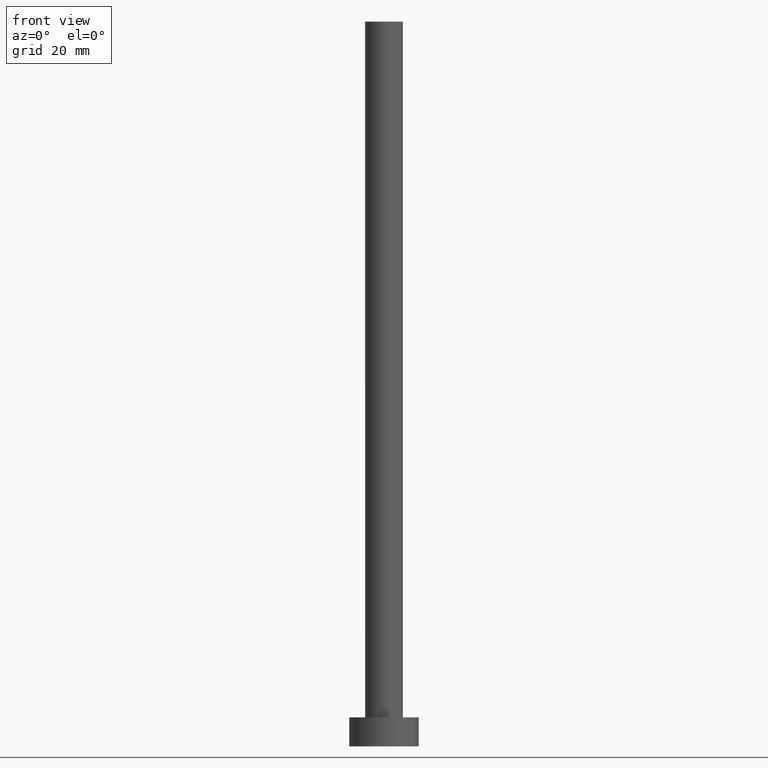
[diagram: clean part render]
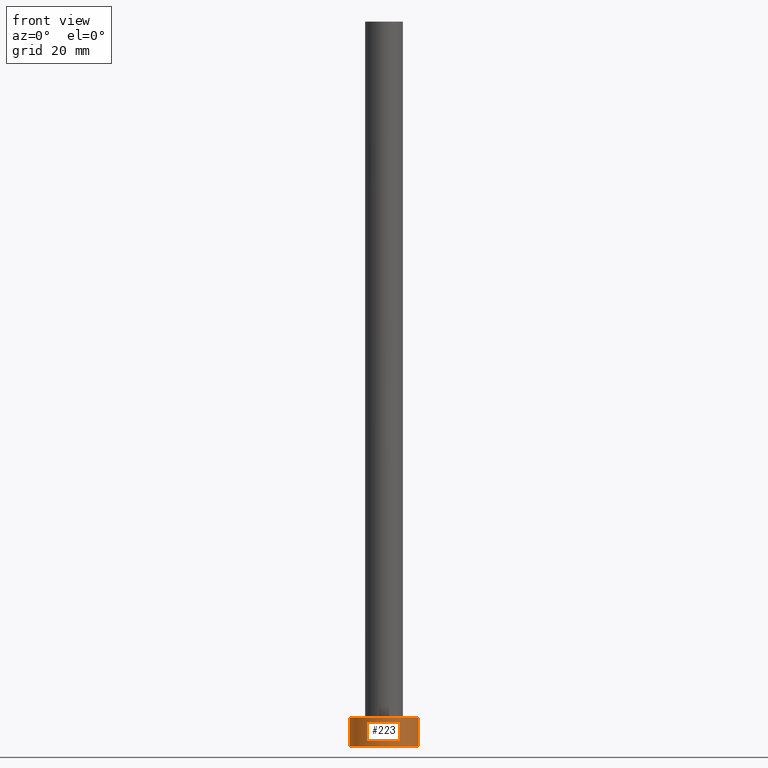
[diagram: same view with one face highlighted and labeled with its STEP entity id]
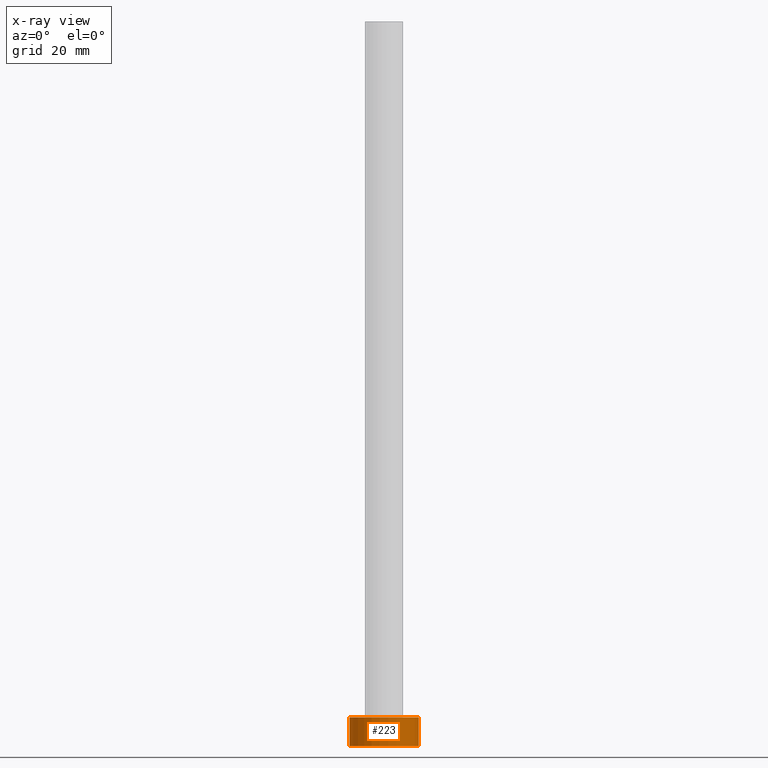
[diagram: x-ray of the same camera — body ghosted, the highlighted face saturated]
A machine part, front view. The second image highlights one B-rep face of the part: STEP entity #223.
The next image is the same camera in x-ray: the body ghosted, the highlighted face saturated — about 0% of this face is hidden behind the body in this view.
In plain terms, the highlighted cylindrical surface (edge-blend (fillet) strip) has radius 6 mm, axis along (-0, -0, -1).
Its self-contained STEP definition (entity closure, byte-faithful):
#12 = EDGE_CURVE ( 'NONE', #165, #32, #95, .T. ) ;
#22 = CARTESIAN_POINT ( 'NONE',  ( 6.000000000000000888, 7.347880794884120722E-16, 5.000000000000000000 ) ) ;
#23 = CARTESIAN_POINT ( 'NONE',  ( -6.000000000000000888, 0.000000000000000000, 0.000000000000000000 ) ) ;
#24 = LINE ( 'NONE', #22, #207 ) ;
#29 = CARTESIAN_POINT ( 'NONE',  ( -6.000000000000000888, 0.000000000000000000, 5.000000000000000000 ) ) ;
#32 = VERTEX_POINT ( 'NONE', #204 ) ;
#35 = EDGE_CURVE ( 'NONE', #32, #130, #24, .T. ) ;
#41 = EDGE_LOOP ( 'NONE', ( #108, #145, #74, #132 ) ) ;
#50 = LINE ( 'NONE', #29, #52 ) ;
#52 = VECTOR ( 'NONE', #209, 1000.000000000000000 ) ;
#61 = CIRCLE ( 'NONE', #120, 6.000000000000000888 ) ;
#64 = FACE_OUTER_BOUND ( 'NONE', #41, .T. ) ;
#66 = CARTESIAN_POINT ( 'NONE',  ( 0.000000000000000000, 0.000000000000000000, 5.000000000000000000 ) ) ;
#68 = DIRECTION ( 'NONE',  ( 0.000000000000000000, 0.000000000000000000, 1.000000000000000000 ) ) ;
#74 = ORIENTED_EDGE ( 'NONE', *, *, #166, .T. ) ;
#88 = CARTESIAN_POINT ( 'NONE',  ( -6.000000000000000888, 0.000000000000000000, 5.000000000000000000 ) ) ;
#95 = CIRCLE ( 'NONE', #150, 6.000000000000000888 ) ;
#108 = ORIENTED_EDGE ( 'NONE', *, *, #35, .F. ) ;
#112 = VERTEX_POINT ( 'NONE', #23 ) ;
#114 = CYLINDRICAL_SURFACE ( 'NONE', #129, 6.000000000000000888 ) ;
#120 = AXIS2_PLACEMENT_3D ( 'NONE', #232, #68, #220 ) ;
#129 = AXIS2_PLACEMENT_3D ( 'NONE', #66, #213, #248 ) ;
#130 = VERTEX_POINT ( 'NONE', #200 ) ;
#132 = ORIENTED_EDGE ( 'NONE', *, *, #136, .T. ) ;
#136 = EDGE_CURVE ( 'NONE', #112, #130, #61, .T. ) ;
#140 = DIRECTION ( 'NONE',  ( -0.000000000000000000, -0.000000000000000000, -1.000000000000000000 ) ) ;
#144 = CARTESIAN_POINT ( 'NONE',  ( 0.000000000000000000, 0.000000000000000000, 5.000000000000000000 ) ) ;
#145 = ORIENTED_EDGE ( 'NONE', *, *, #12, .F. ) ;
#150 = AXIS2_PLACEMENT_3D ( 'NONE', #144, #239, #237 ) ;
#165 = VERTEX_POINT ( 'NONE', #88 ) ;
#166 = EDGE_CURVE ( 'NONE', #165, #112, #50, .T. ) ;
#200 = CARTESIAN_POINT ( 'NONE',  ( 6.000000000000000888, 7.347880794884120722E-16, 0.000000000000000000 ) ) ;
#204 = CARTESIAN_POINT ( 'NONE',  ( 6.000000000000000888, 7.347880794884120722E-16, 5.000000000000000000 ) ) ;
#207 = VECTOR ( 'NONE', #140, 1000.000000000000000 ) ;
#209 = DIRECTION ( 'NONE',  ( -0.000000000000000000, -0.000000000000000000, -1.000000000000000000 ) ) ;
#213 = DIRECTION ( 'NONE',  ( -0.000000000000000000, -0.000000000000000000, -1.000000000000000000 ) ) ;
#220 = DIRECTION ( 'NONE',  ( 1.000000000000000000, 0.000000000000000000, 0.000000000000000000 ) ) ;
#223 = ADVANCED_FACE ( 'NONE', ( #64 ), #114, .T. ) ;
#232 = CARTESIAN_POINT ( 'NONE',  ( 0.000000000000000000, 0.000000000000000000, 0.000000000000000000 ) ) ;
#237 = DIRECTION ( 'NONE',  ( 1.000000000000000000, 0.000000000000000000, 0.000000000000000000 ) ) ;
#239 = DIRECTION ( 'NONE',  ( 0.000000000000000000, 0.000000000000000000, 1.000000000000000000 ) ) ;
#248 = DIRECTION ( 'NONE',  ( -1.000000000000000000, 0.000000000000000000, 0.000000000000000000 ) ) ;